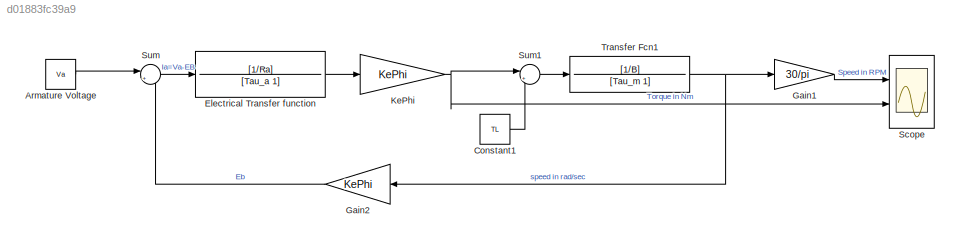
MODEL slx_d01883fc39a9
KIND model
CONFIG AbsTol = auto
CONFIG EnableMultiTasking = off
CONFIG FixedStep = auto
CONFIG MaxStep = auto
CONFIG MinStep = auto
CONFIG RelTol = 1e-3
CONFIG SampleTimeConstraint = Unconstrained
CONFIG SolverName = VariableStepAuto
CONFIG StartTime = 0.0
CONFIG StopTime = 10.0
BLOCK [Constant] Armature Voltage
  Value = Va
BLOCK [Constant] Constant1
  Value = TL
BLOCK [TransferFcn] Electrical Transfer function
  Denominator = [Tau_a 1]
  Numerator = [1/Ra]
BLOCK [Gain] Gain1
  Gain = 30/pi
BLOCK [Gain] Gain2
  Gain = KePhi
BLOCK [Gain] KePhi
  Gain = KePhi
BLOCK [Scope] Scope
  Floating = off
  NumInputPorts = 2
  Ports = [2]
  ScopeSpecificationString = Simulink.scopes.TimeScopeBlockCfg('CurrentConfiguration', extmgr.ConfigurationSet(extmgr.Configuration('Core','General UI',true,'FigureColor',[0 0 0]),extmgr.Configuration('Core','Source UI',true),extmgr.Configuration('Sources','WiredSimulink',true,'DataLoggingSaveFormat','Array','DataLoggingLimitDataPoints',true,'DataLoggingDecimation','1'),extmgr.Configuration('Visuals','Time Domain',true,'Seria...<+2190ch>
BLOCK [Sum] Sum
  Inputs = |+-
  Ports = [2, 1]
BLOCK [Sum] Sum1
  Inputs = |+-
  Ports = [2, 1]
BLOCK [TransferFcn] Transfer Fcn1
  Denominator = [Tau_m 1]
  Numerator = [1/B]
LINE Armature Voltage:1 -> Sum:1
LINE Constant1:1 -> Sum1:2
LINE Electrical Transfer function:1 -> KePhi:1
LINE Gain1:1 -> Scope:1
LINE Gain2:1 -> Sum:2
NET KePhi:1 -> Scope:2, Sum1:1
LINE Sum1:1 -> Transfer Fcn1:1
LINE Sum:1 -> Electrical Transfer function:1
NET Transfer Fcn1:1 -> Gain1:1, Gain2:1
note: NET lines group one-source signal fan-out (src -> all destinations, sorted); 1:1 wires keep LINE
